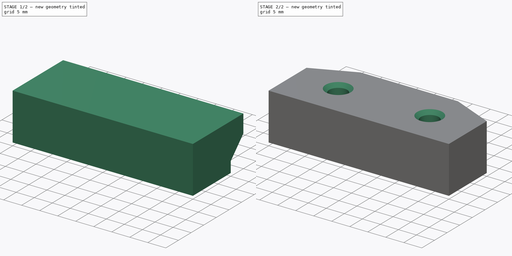
[diagram: build sequence overview — one tinted view per stage of 2, left to right]
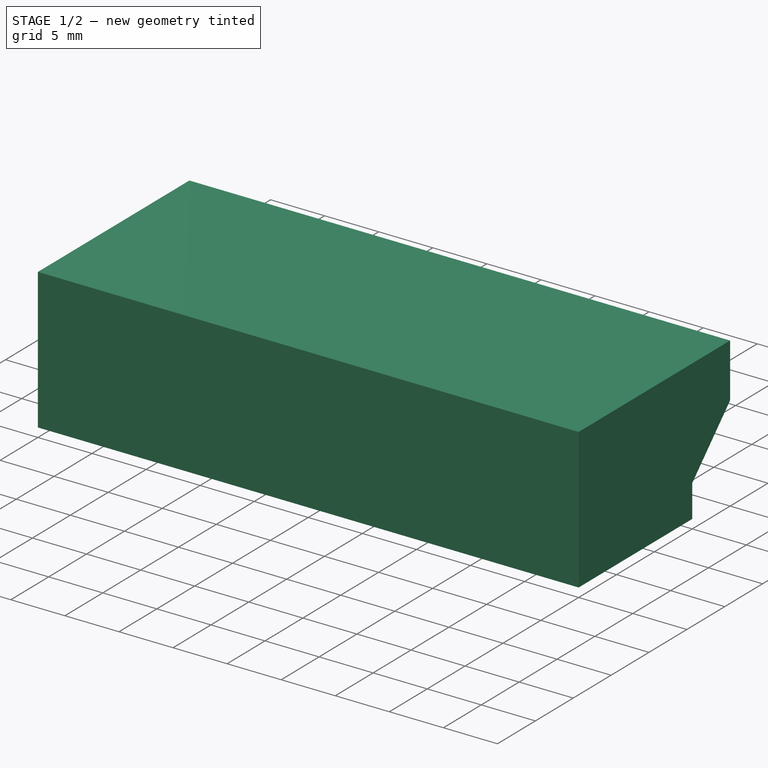
[diagram: stage 1 of 2 — iso view after this stage's code; geometry added in this stage tinted green]
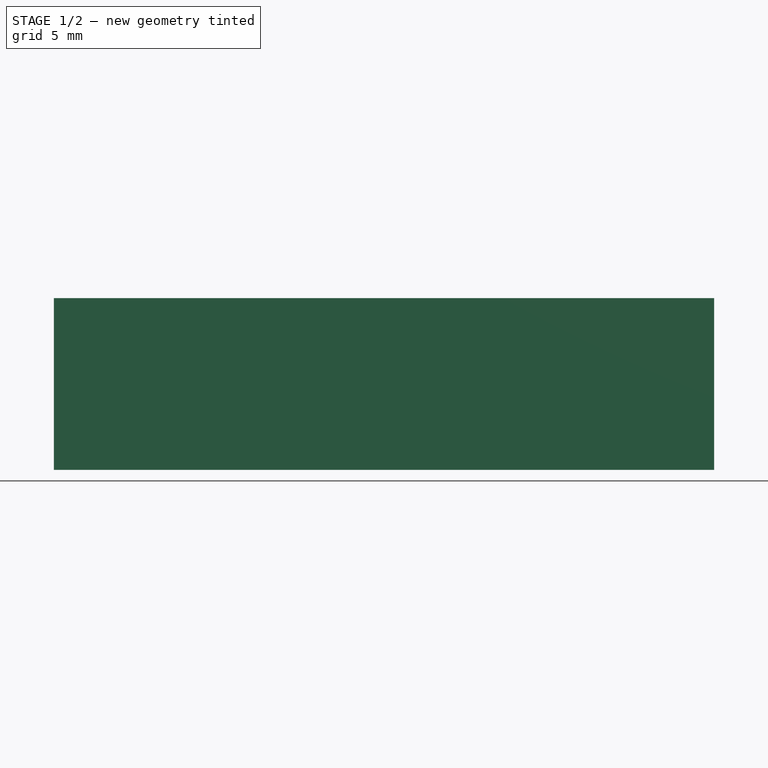
[diagram: stage 1 of 2 — front view after this stage's code; geometry added in this stage tinted green]
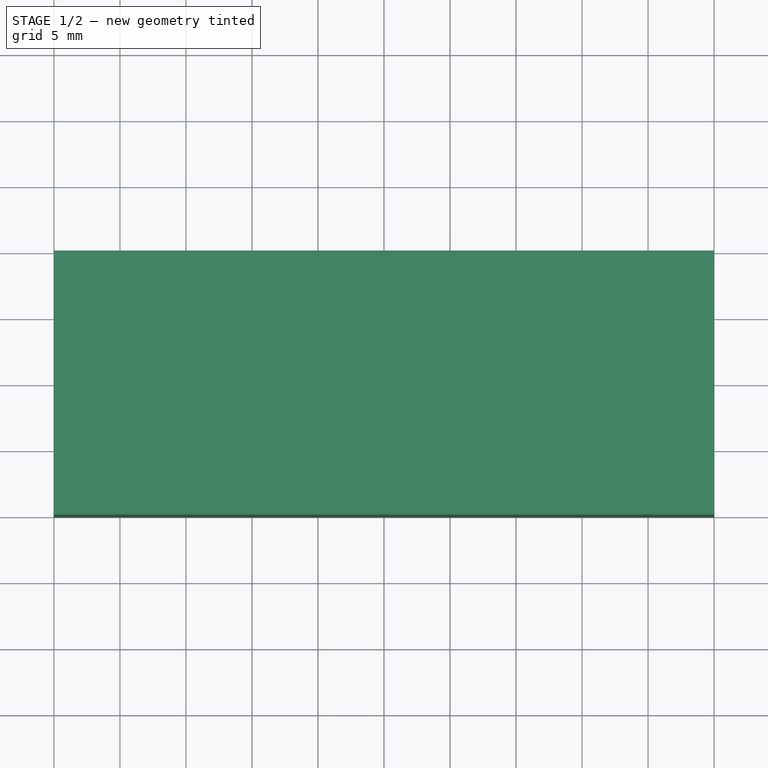
[diagram: stage 1 of 2 — top view after this stage's code; geometry added in this stage tinted green]
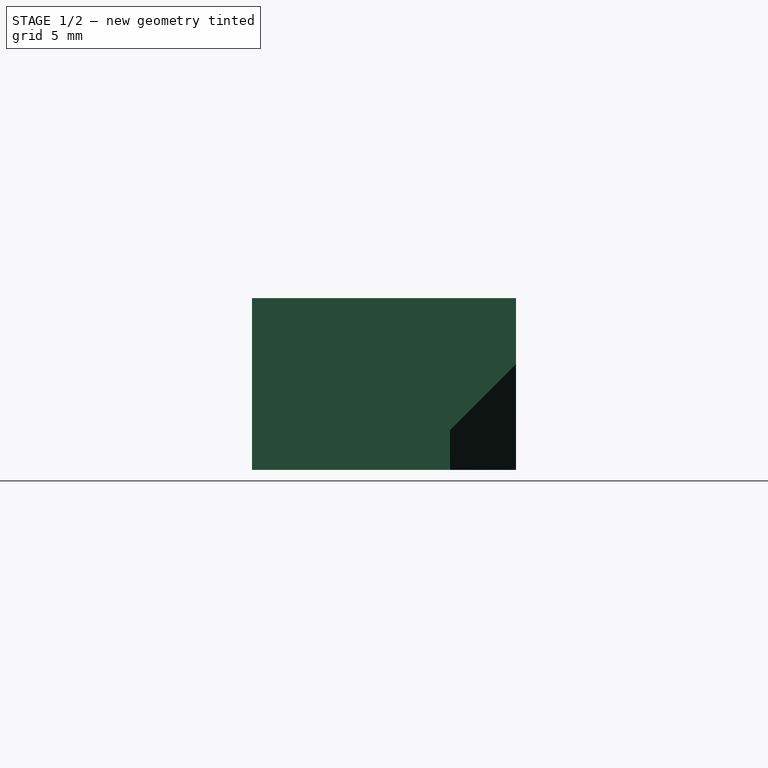
[diagram: stage 1 of 2 — right view after this stage's code; geometry added in this stage tinted green]
FCSTD DOCUMENT  (FreeCAD 1.0R39109 (Git))
Label: spd_sl
License: All rights reserved
LicenseURL: https://en.wikipedia.org/wiki/All_rights_reserved
objects: Sketcher::SketchObject×3, PartDesign::Pad×2, PartDesign::Body×2, Spreadsheet::Sheet×1, PartDesign::Boolean×1, PartDesign::Plane×1, PartDesign::Hole×1
note: 20 computed .brp shape members not serialized (recipe doc carries the construction recipe); baked Part::Feature solids carry a one-line shape summary decoded from their .brp

FEATURE [Sketcher::SketchObject] Sketch
  ArcFitTolerance = 1e-06
  AttachmentSupport = -> [XY_Plane]
  FullyConstrained = true
  MakeInternals = false
  MapMode = 5
  expr: Constraints[10] = Spreadsheet.base_height
  expr: Constraints[12] = Spreadsheet.total_height
  expr: Constraints[8] = Spreadsheet.base_width
  expr: Constraints[9] = Spreadsheet.top_width
  sketch-geometry (6):
    g0: LineSegment StartX=-25 StartY=0 StartZ=0 EndX=25 EndY=0 EndZ=0
    g1: LineSegment StartX=-25 StartY=0 StartZ=0 EndX=-25 EndY=15 EndZ=0
    g2: LineSegment StartX=25 StartY=0 StartZ=0 EndX=25 EndY=15 EndZ=0
    g3: LineSegment StartX=-13.5 StartY=20 StartZ=0 EndX=13.5 EndY=20 EndZ=0
    g4: LineSegment StartX=-25 StartY=15 StartZ=0 EndX=-13.5 EndY=20 EndZ=0
    g5: LineSegment StartX=13.5 StartY=20 StartZ=0 EndX=25 EndY=15 EndZ=0
  constraints (16):
    c: Coincident(g1,g0)
    c: Vertical(g1)
    c: Coincident(g2,g0)
    c: Vertical(g2)
    c: Coincident(g4,g1)
    c: Coincident(g4,g3)
    c: Coincident(g5,g3)
    c: Coincident(g5,g2)
    c: DistanceX(g0,g0) = 50
    c: DistanceX(g3,g3) = 27
    c: DistanceY(g1,g1) = 15
    c: Equal(g1,g2)
    c: DistanceY(g0,g3) = 20
    c: PointOnObject(g0,g-1)
    c: Symmetric(g0,g0,g-2)
    c: Symmetric(g3,g3,g-2)
FEATURE [Spreadsheet::Sheet] Spreadsheet
  cells = A1='base_width; B1(base_width)=50; A2='base_height; B2(base_height)=15; A3='total_height; B3(total_height)=20; A4='depth; B4(depth)=13; A5='top_width; B5(top_width)=27; A6='hole_height; B6(hole_height)==B2 * 2 / 3; A7='hole_spacing; B7(hole_spacing)=25.4; A8='hole_diam; B8(hole_diam)=5; A9='bore_depth; B9(bore_depth)=8; A10='bore_diam; B10(bore_diam)=7; A11='top_shelf_width; B11(top_shelf_width)=5; A12='bottom shelf width; B12(bottom_shelf_width)=3
FEATURE [PartDesign::Pad] Pad
  Direction = (0,0,1)
  Length = 13
  Length2 = 10
  Profile = -> Sketch
  ReferenceAxis = -> Sketch [N_Axis]
  Refine = true
  Suppressed = false
  Type = 0
  expr: Length = Spreadsheet.depth
FEATURE [PartDesign::Body] Body
  AllowCompound = false
  Group = -> [Sketch,Pad]
  Origin = -> Origin
  Tip = -> Pad
FEATURE [Sketcher::SketchObject] Sketch001
  ArcFitTolerance = 1e-06
  AttachmentSupport = -> [YZ_Plane001]
  FullyConstrained = true
  MakeInternals = false
  MapMode = 5
  Placement = pos=(0,0,0) rot=(0.57735,0.57735,0.57735;2.0944rad)
  expr: Constraints[11] = Spreadsheet.top_shelf_width
  expr: Constraints[16] = Spreadsheet.bottom_shelf_width
  expr: Constraints[5] = Spreadsheet.base_height
  expr: Constraints[6] = Spreadsheet.depth
  expr: Constraints[7] = Spreadsheet.total_height
  sketch-geometry (6):
    g0: LineSegment StartX=0 StartY=0 StartZ=0 EndX=0 EndY=13 EndZ=0
    g1: LineSegment StartX=0 StartY=0 StartZ=0 EndX=15 EndY=0 EndZ=0
    g2: LineSegment StartX=0 StartY=13 StartZ=0 EndX=20 EndY=13 EndZ=0
    g3: LineSegment StartX=20 StartY=8 StartZ=0 EndX=20 EndY=13 EndZ=0
    g4: LineSegment StartX=15 StartY=0 StartZ=0 EndX=15 EndY=3 EndZ=0
    g5: LineSegment StartX=20 StartY=8 StartZ=0 EndX=15 EndY=3 EndZ=0
  constraints (17):
    c: Vertical(g0)
    c: Coincident(g1,g0)
    c: Horizontal(g1)
    c: Coincident(g2,g0)
    c: Horizontal(g2)
    c: DistanceX(g1,g1) = 15
    c: DistanceY(g0,g0) = 13
    c: DistanceX(g2,g2) = 20
    c: Coincident(g0,g-1)
    c: Vertical(g3)
    c: Coincident(g3,g2)
    c: DistanceY(g3,g2) = 5
    c: Vertical(g4)
    c: Coincident(g4,g1)
    c: Coincident(g5,g4)
    c: Coincident(g5,g3)
    c: DistanceY(g4,g4) = 3
FEATURE [PartDesign::Pad] Pad001
  Direction = (1,0,0)
  Length = 50
  Length2 = 10
  Midplane = true
  Placement = pos=(0,0,0) rot=(1,1,1;2.0944rad)
  Profile = -> Sketch001
  ReferenceAxis = -> Sketch001 [N_Axis]
  Refine = true
  Suppressed = false
  Type = 0
  expr: Length = Spreadsheet.base_width
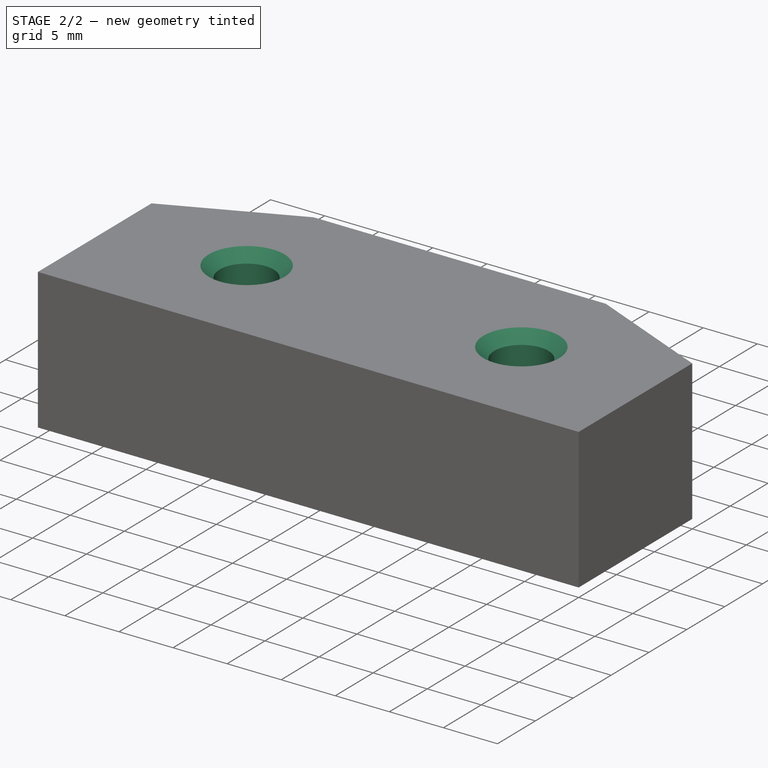
[diagram: stage 2 of 2 — iso view after this stage's code; geometry added in this stage tinted green]
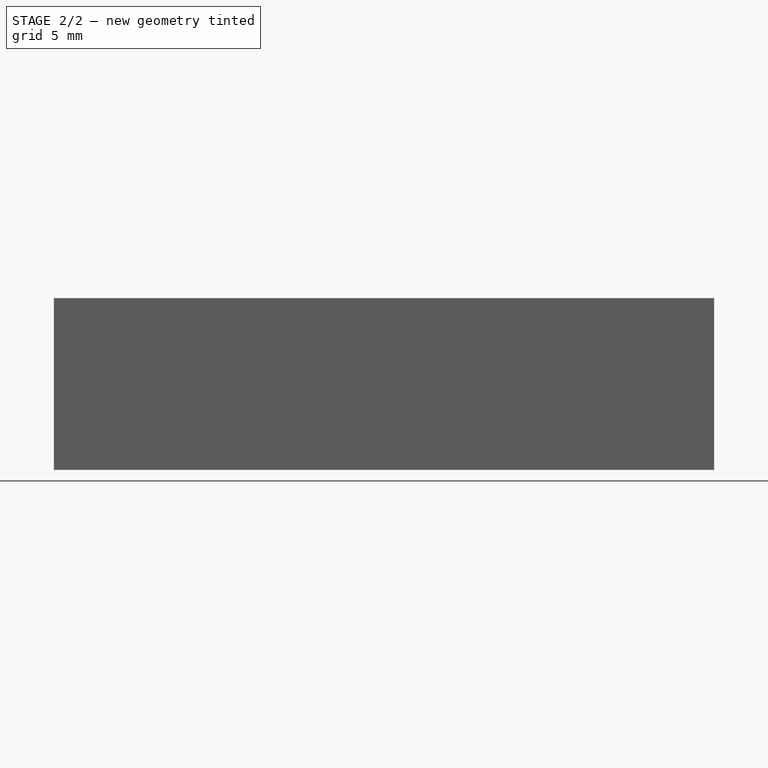
[diagram: stage 2 of 2 — front view after this stage's code; geometry added in this stage tinted green]
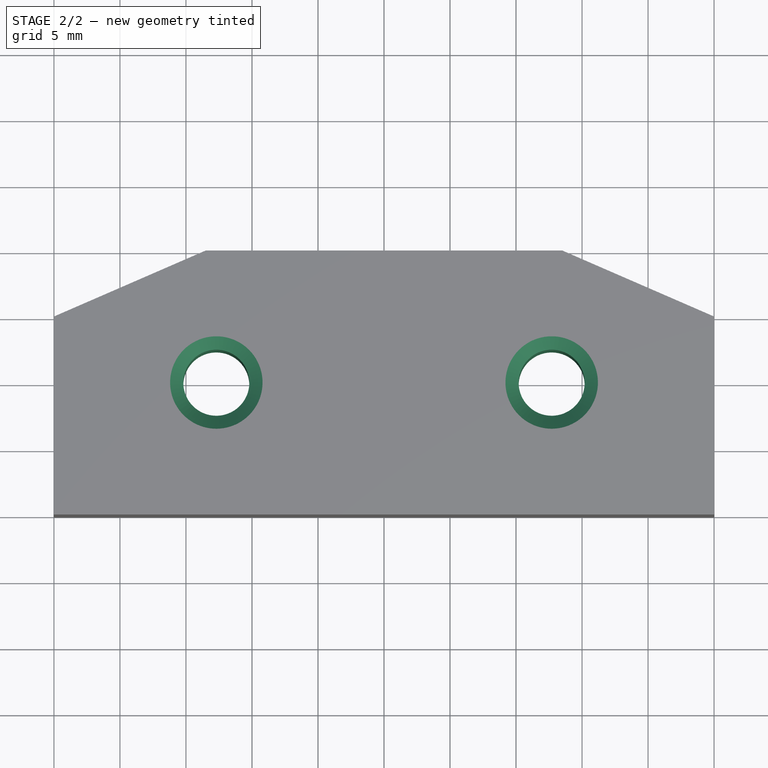
[diagram: stage 2 of 2 — top view after this stage's code; geometry added in this stage tinted green]
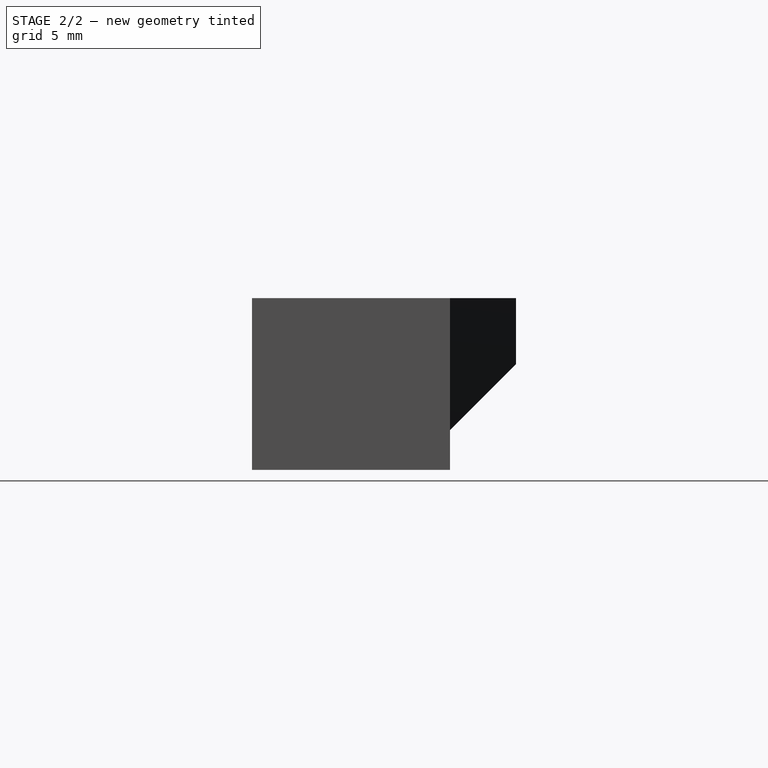
[diagram: stage 2 of 2 — right view after this stage's code; geometry added in this stage tinted green]
FEATURE [PartDesign::Boolean] Boolean
  BaseFeature = -> Pad001
  Group = -> [Body]
  Refine = true
  Suppressed = false
  Type = 2
  UsePlacement = true
FEATURE [PartDesign::Plane] DatumPlane
  AttachmentSupport = -> [Boolean]
  Length = 60
  MapMode = 5
  Placement = pos=(-1.4e-15,4.3e-15,13) rot=(0,0,1;0rad)
  ResizeMode = 0
  Width = 60
FEATURE [Sketcher::SketchObject] Sketch002
  ArcFitTolerance = 1e-06
  AttachmentSupport = -> [DatumPlane]
  FullyConstrained = false
  MakeInternals = false
  MapMode = 5
  Placement = pos=(-1.4e-15,4.3e-15,13) rot=(0,0,1;0rad)
  expr: Constraints[0] = Spreadsheet.hole_spacing
  expr: Constraints[5] = Spreadsheet.hole_height
  sketch-geometry (4):
    g0: LineSegment [constr] StartX=-12.7 StartY=10 StartZ=0 EndX=12.7 EndY=10 EndZ=0
    g1: LineSegment [constr] StartX=-12.7 StartY=10 StartZ=0 EndX=-12.7 EndY=0 EndZ=0
    g2: Circle CenterX=-12.7 CenterY=10 CenterZ=0 NormalX=0 NormalY=0 NormalZ=1 AngleXU=0 Radius=0.5
    g3: Circle CenterX=12.7 CenterY=10 CenterZ=0 NormalX=0 NormalY=0 NormalZ=1 AngleXU=0 Radius=0.5
  constraints (6):
    c: DistanceX(g0,g0) = 25.4
    c: Symmetric(g0,g0,g-2)
    c: Coincident(g1,g0)
    c: PointOnObject(g1,g-1)
    c: Vertical(g1)
    c: DistanceY(g1,g1) = 10
FEATURE [PartDesign::Hole] Hole
  BaseFeature = -> Boolean
  CustomThreadClearance = 0
  Depth = 110.64
  DepthType = 1
  Diameter = 5
  DrillForDepth = false
  DrillPoint = 1
  DrillPointAngle = 118
  HoleCutCountersinkAngle = 90
  HoleCutCustomValues = false
  HoleCutDepth = 8
  HoleCutDiameter = 7
  HoleCutType = 2
  ModelThread = false
  Profile = -> Sketch002
  Refine = true
  Suppressed = false
  Tapered = false
  TaperedAngle = 90
  ThreadClass = 0
  ThreadDepth = 110.64
  ThreadDepthType = 0
  ThreadDirection = 0
  ThreadFit = 0
  ThreadSize = 0
  ThreadType = 0
  Threaded = false
  UseCustomThreadClearance = false
  expr: Diameter = Spreadsheet.hole_diam
  expr: HoleCutDepth = Spreadsheet.bore_depth
  expr: HoleCutDiameter = Spreadsheet.bore_diam
FEATURE [PartDesign::Body] Body001
  AllowCompound = false
  Group = -> [Sketch001,Pad001,Boolean,DatumPlane,Sketch002,Hole]
  Origin = -> Origin001
  Tip = -> Hole
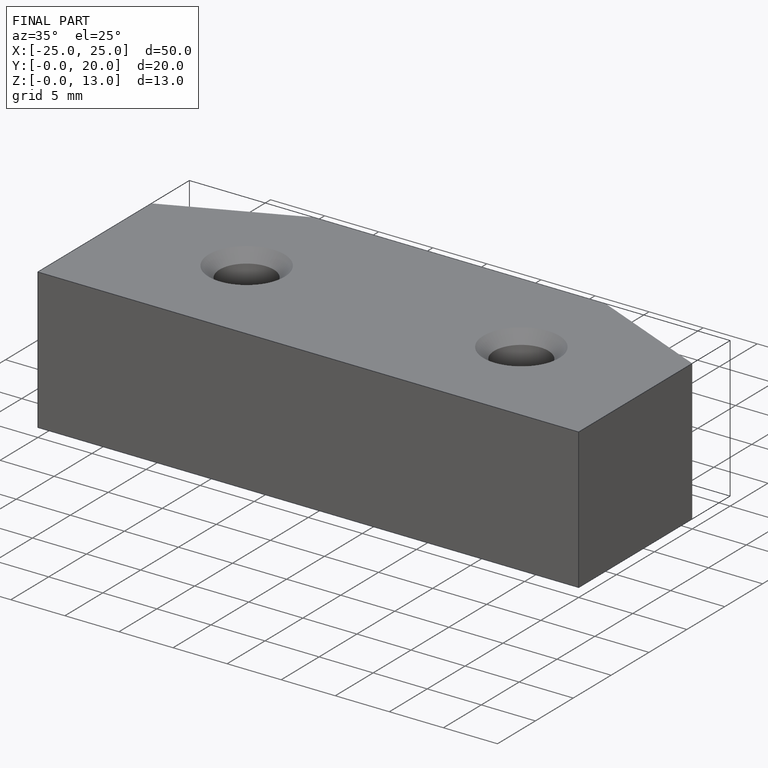
[diagram: finished part — iso view with bounding-box wireframe]
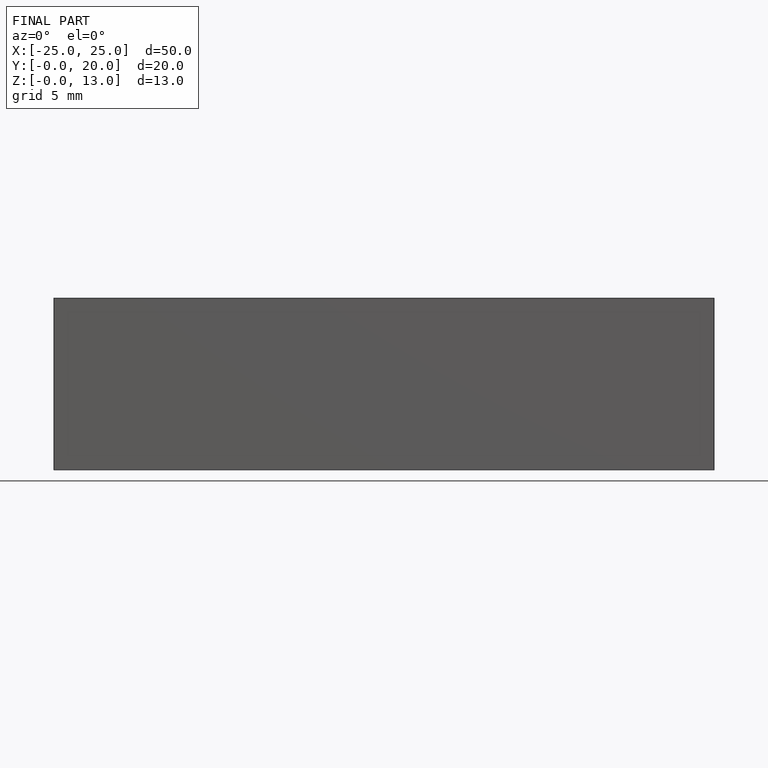
[diagram: finished part — front view with bounding-box wireframe]
